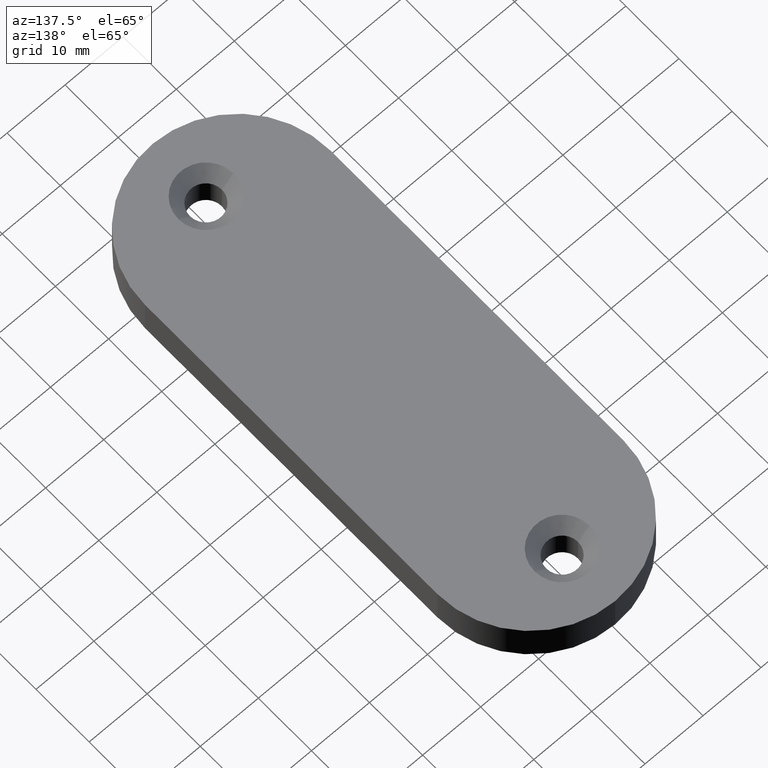
[diagram: clean part render]
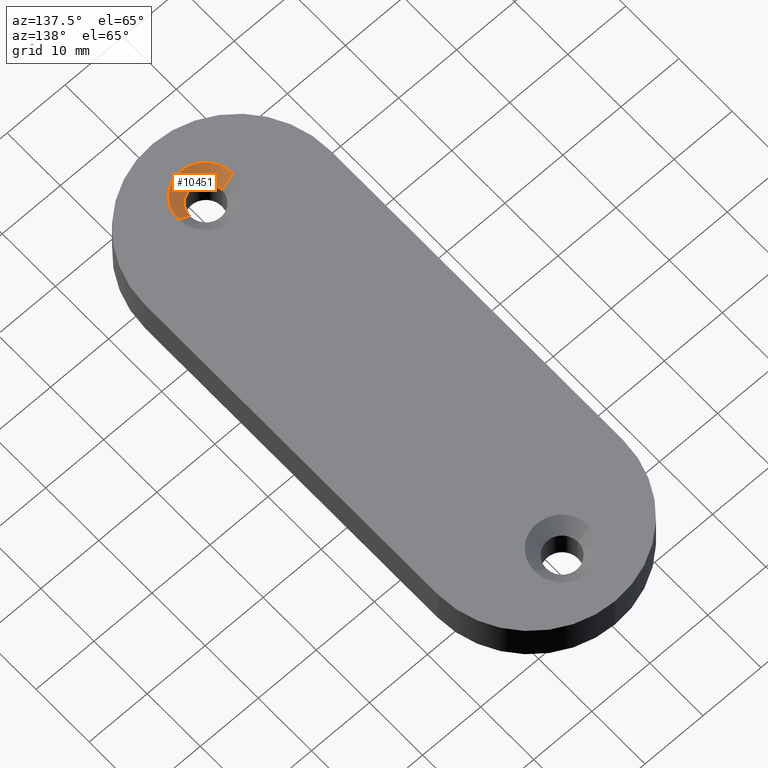
[diagram: same view with one face highlighted and labeled with its STEP entity id]
A machine part, auxiliary view. The second image highlights one B-rep face of the part: STEP entity #10451.
In plain terms, the highlighted conical surface has half-angle 45 deg.
Its self-contained STEP definition (entity closure, byte-faithful):
#155 = VERTEX_POINT ( 'NONE', #3090 ) ;
#219 = VERTEX_POINT ( 'NONE', #6683 ) ;
#1216 = CIRCLE ( 'NONE', #5549, 2.750000000000000444 ) ;
#1329 = ORIENTED_EDGE ( 'NONE', *, *, #2928, .F. ) ;
#1646 = DIRECTION ( 'NONE',  ( 0.000000000000000000, -0.000000000000000000, -1.000000000000000000 ) ) ;
#1763 = ORIENTED_EDGE ( 'NONE', *, *, #4753, .F. ) ;
#2355 = DIRECTION ( 'NONE',  ( 1.000000000000000000, 0.000000000000000000, 0.000000000000000000 ) ) ;
#2461 = CARTESIAN_POINT ( 'NONE',  ( 0.000000000000000000, -33.50000000000000000, 7.000000000000000000 ) ) ;
#2490 = AXIS2_PLACEMENT_3D ( 'NONE', #2461, #1646, #8163 ) ;
#2862 = CARTESIAN_POINT ( 'NONE',  ( 4.750000000000031974, -33.50000000000000000, 7.000000000000000000 ) ) ;
#2910 = DIRECTION ( 'NONE',  ( 0.000000000000000000, 0.000000000000000000, 1.000000000000000000 ) ) ;
#2928 = EDGE_CURVE ( 'NONE', #155, #6685, #3770, .T. ) ;
#3044 = VERTEX_POINT ( 'NONE', #3549 ) ;
#3090 = CARTESIAN_POINT ( 'NONE',  ( 2.750000000000000444, -33.50000000000000000, 4.999999999999985789 ) ) ;
#3549 = CARTESIAN_POINT ( 'NONE',  ( -4.750000000000031974, -33.50000000000000000, 7.000000000000000000 ) ) ;
#3770 = LINE ( 'NONE', #4076, #5069 ) ;
#4076 = CARTESIAN_POINT ( 'NONE',  ( 2.750000000000000444, -33.50000000000000000, 4.999999999999985789 ) ) ;
#4389 = DIRECTION ( 'NONE',  ( -0.7071067811865506814, 8.659560562354971069E-17, 0.7071067811865443531 ) ) ;
#4562 = EDGE_CURVE ( 'NONE', #6685, #3044, #4773, .T. ) ;
#4753 = EDGE_CURVE ( 'NONE', #219, #155, #1216, .T. ) ;
#4773 = CIRCLE ( 'NONE', #2490, 4.750000000000031974 ) ;
#5069 = VECTOR ( 'NONE', #9816, 1000.000000000000114 ) ;
#5306 = CARTESIAN_POINT ( 'NONE',  ( -2.750000000000000444, -33.50000000000000000, 4.999999999999985789 ) ) ;
#5335 = DIRECTION ( 'NONE',  ( 1.000000000000000000, 0.000000000000000000, 0.000000000000000000 ) ) ;
#5455 = EDGE_CURVE ( 'NONE', #219, #3044, #6062, .T. ) ;
#5549 = AXIS2_PLACEMENT_3D ( 'NONE', #10552, #7302, #2355 ) ;
#6062 = LINE ( 'NONE', #5306, #8100 ) ;
#6683 = CARTESIAN_POINT ( 'NONE',  ( -2.750000000000000444, -33.50000000000000000, 4.999999999999985789 ) ) ;
#6685 = VERTEX_POINT ( 'NONE', #2862 ) ;
#7302 = DIRECTION ( 'NONE',  ( 0.000000000000000000, 0.000000000000000000, 1.000000000000000000 ) ) ;
#8003 = ORIENTED_EDGE ( 'NONE', *, *, #5455, .T. ) ;
#8100 = VECTOR ( 'NONE', #4389, 1000.000000000000114 ) ;
#8163 = DIRECTION ( 'NONE',  ( 1.000000000000000000, 0.000000000000000000, 0.000000000000000000 ) ) ;
#8438 = CONICAL_SURFACE ( 'NONE', #10080, 2.750000000000000444, 0.7853981633974528309 ) ;
#8732 = CARTESIAN_POINT ( 'NONE',  ( 0.000000000000000000, -33.50000000000000000, 4.999999999999985789 ) ) ;
#9408 = EDGE_LOOP ( 'NONE', ( #1763, #8003, #10049, #1329 ) ) ;
#9468 = FACE_OUTER_BOUND ( 'NONE', #9408, .T. ) ;
#9816 = DIRECTION ( 'NONE',  ( 0.7071067811865506814, 0.000000000000000000, 0.7071067811865443531 ) ) ;
#10049 = ORIENTED_EDGE ( 'NONE', *, *, #4562, .F. ) ;
#10080 = AXIS2_PLACEMENT_3D ( 'NONE', #8732, #2910, #5335 ) ;
#10451 = ADVANCED_FACE ( 'NONE', ( #9468 ), #8438, .F. ) ;
#10552 = CARTESIAN_POINT ( 'NONE',  ( 0.000000000000000000, -33.50000000000000000, 4.999999999999985789 ) ) ;